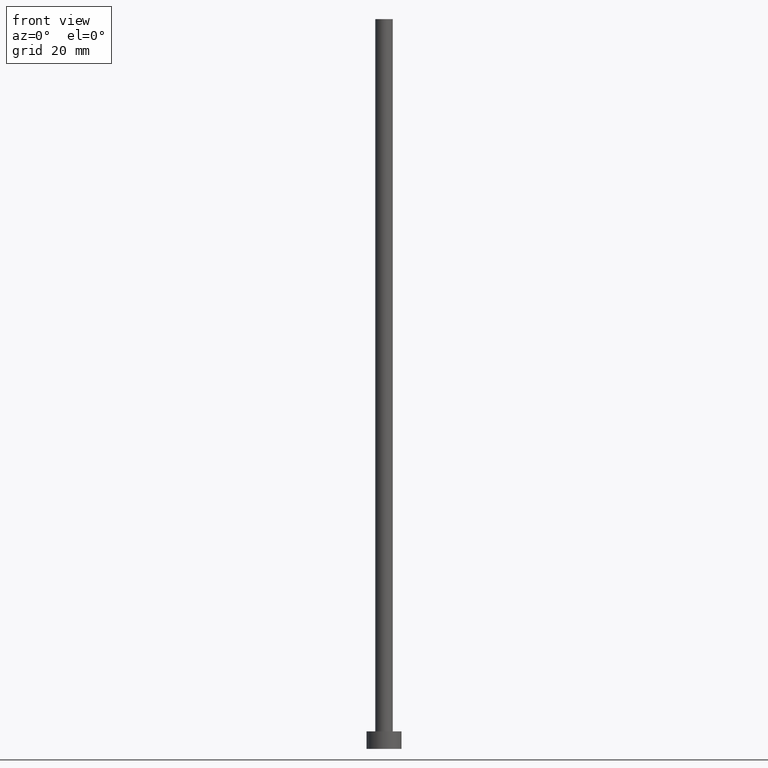
[diagram: clean part render]
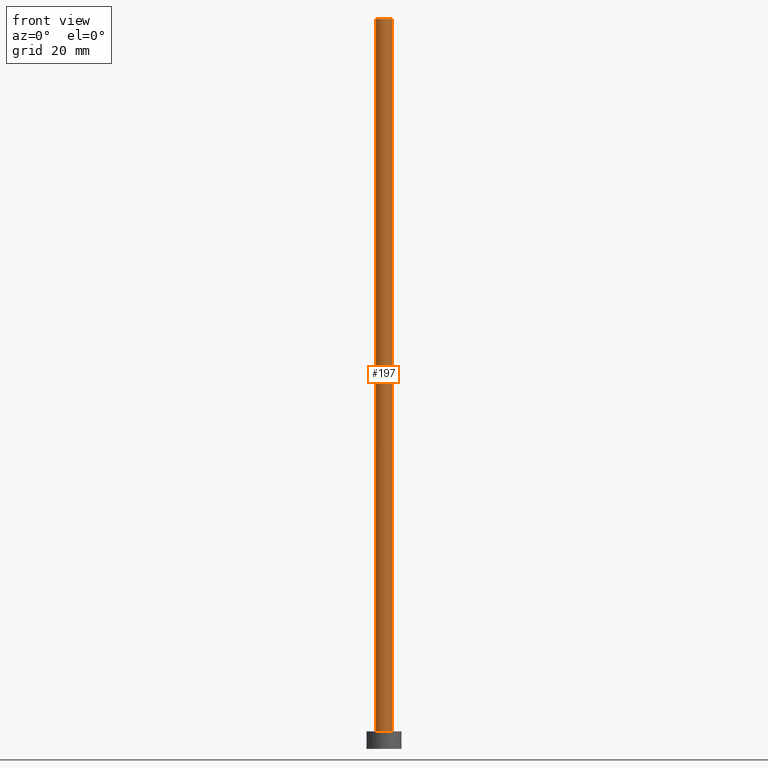
[diagram: same view with one face highlighted and labeled with its STEP entity id]
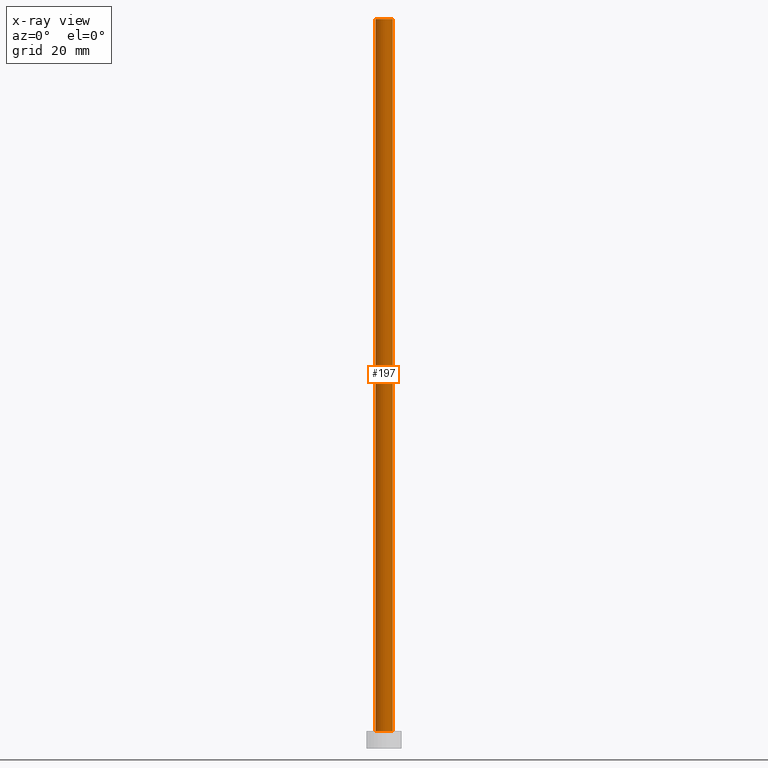
[diagram: x-ray of the same camera — body ghosted, the highlighted face saturated]
A machine part, front view. The second image highlights one B-rep face of the part: STEP entity #197.
The next image is the same camera in x-ray: the body ghosted, the highlighted face saturated — about 0% of this face is hidden behind the body in this view.
In plain terms, the highlighted cylindrical surface (edge-blend (fillet) strip) has radius 1.5 mm, axis along (-0, -0, -1).
Its self-contained STEP definition (entity closure, byte-faithful):
#1 = LINE ( 'NONE', #57, #152 ) ;
#2 = CARTESIAN_POINT ( 'NONE',  ( 0.000000000000000000, 0.000000000000000000, 3.000000000000000000 ) ) ;
#6 = EDGE_CURVE ( 'NONE', #211, #42, #1, .T. ) ;
#7 = AXIS2_PLACEMENT_3D ( 'NONE', #2, #198, #220 ) ;
#16 = CARTESIAN_POINT ( 'NONE',  ( 1.500000000000000222, 1.836970198721029934E-16, 125.0000000000000000 ) ) ;
#21 = CARTESIAN_POINT ( 'NONE',  ( -1.500000000000000222, 0.000000000000000000, 3.000000000000000000 ) ) ;
#23 = CARTESIAN_POINT ( 'NONE',  ( 0.000000000000000000, 0.000000000000000000, 125.0000000000000000 ) ) ;
#32 = VERTEX_POINT ( 'NONE', #189 ) ;
#42 = VERTEX_POINT ( 'NONE', #21 ) ;
#51 = EDGE_CURVE ( 'NONE', #179, #32, #116, .T. ) ;
#57 = CARTESIAN_POINT ( 'NONE',  ( -1.500000000000000222, 0.000000000000000000, 125.0000000000000000 ) ) ;
#72 = CARTESIAN_POINT ( 'NONE',  ( 0.000000000000000000, 0.000000000000000000, 125.0000000000000000 ) ) ;
#74 = DIRECTION ( 'NONE',  ( 1.000000000000000000, 0.000000000000000000, 0.000000000000000000 ) ) ;
#93 = DIRECTION ( 'NONE',  ( -0.000000000000000000, -0.000000000000000000, -1.000000000000000000 ) ) ;
#103 = DIRECTION ( 'NONE',  ( -1.000000000000000000, 0.000000000000000000, 0.000000000000000000 ) ) ;
#116 = LINE ( 'NONE', #194, #249 ) ;
#139 = CARTESIAN_POINT ( 'NONE',  ( -1.500000000000000222, 0.000000000000000000, 125.0000000000000000 ) ) ;
#141 = DIRECTION ( 'NONE',  ( -0.000000000000000000, -0.000000000000000000, -1.000000000000000000 ) ) ;
#144 = AXIS2_PLACEMENT_3D ( 'NONE', #23, #252, #103 ) ;
#152 = VECTOR ( 'NONE', #141, 1000.000000000000000 ) ;
#165 = EDGE_LOOP ( 'NONE', ( #232, #238, #225, #223 ) ) ;
#167 = EDGE_CURVE ( 'NONE', #42, #32, #250, .T. ) ;
#175 = CYLINDRICAL_SURFACE ( 'NONE', #144, 1.500000000000000222 ) ;
#179 = VERTEX_POINT ( 'NONE', #16 ) ;
#181 = DIRECTION ( 'NONE',  ( 0.000000000000000000, 0.000000000000000000, 1.000000000000000000 ) ) ;
#189 = CARTESIAN_POINT ( 'NONE',  ( 1.500000000000000222, 1.836970198721029934E-16, 3.000000000000000000 ) ) ;
#191 = FACE_OUTER_BOUND ( 'NONE', #165, .T. ) ;
#194 = CARTESIAN_POINT ( 'NONE',  ( 1.500000000000000222, 1.836970198721029934E-16, 125.0000000000000000 ) ) ;
#197 = ADVANCED_FACE ( 'NONE', ( #191 ), #175, .T. ) ;
#198 = DIRECTION ( 'NONE',  ( 0.000000000000000000, 0.000000000000000000, 1.000000000000000000 ) ) ;
#202 = EDGE_CURVE ( 'NONE', #211, #179, #217, .T. ) ;
#211 = VERTEX_POINT ( 'NONE', #139 ) ;
#217 = CIRCLE ( 'NONE', #244, 1.500000000000000222 ) ;
#220 = DIRECTION ( 'NONE',  ( 1.000000000000000000, 0.000000000000000000, 0.000000000000000000 ) ) ;
#223 = ORIENTED_EDGE ( 'NONE', *, *, #167, .T. ) ;
#225 = ORIENTED_EDGE ( 'NONE', *, *, #6, .T. ) ;
#232 = ORIENTED_EDGE ( 'NONE', *, *, #51, .F. ) ;
#238 = ORIENTED_EDGE ( 'NONE', *, *, #202, .F. ) ;
#244 = AXIS2_PLACEMENT_3D ( 'NONE', #72, #181, #74 ) ;
#249 = VECTOR ( 'NONE', #93, 1000.000000000000000 ) ;
#250 = CIRCLE ( 'NONE', #7, 1.500000000000000222 ) ;
#252 = DIRECTION ( 'NONE',  ( -0.000000000000000000, -0.000000000000000000, -1.000000000000000000 ) ) ;